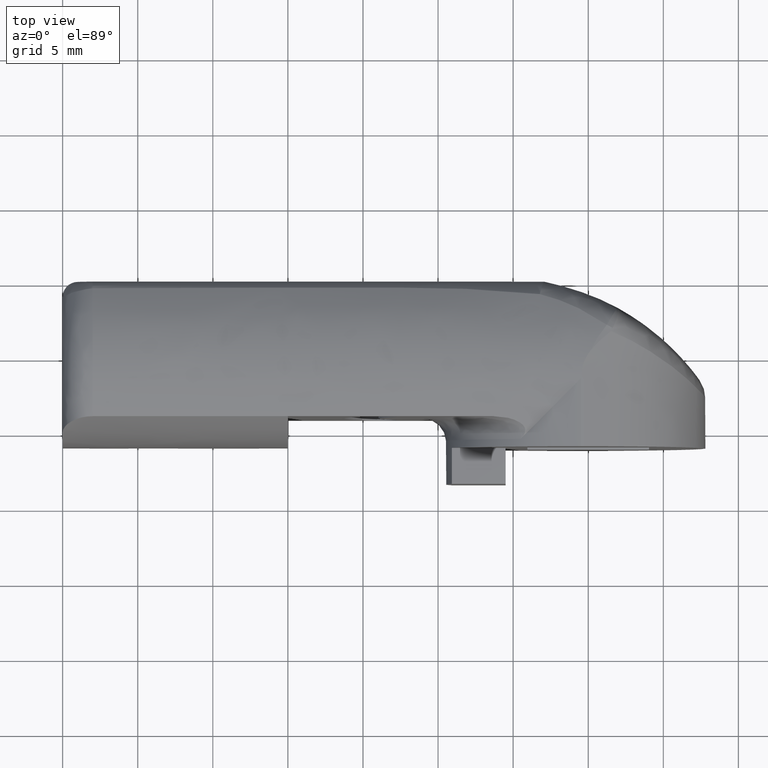
[diagram: clean part render]
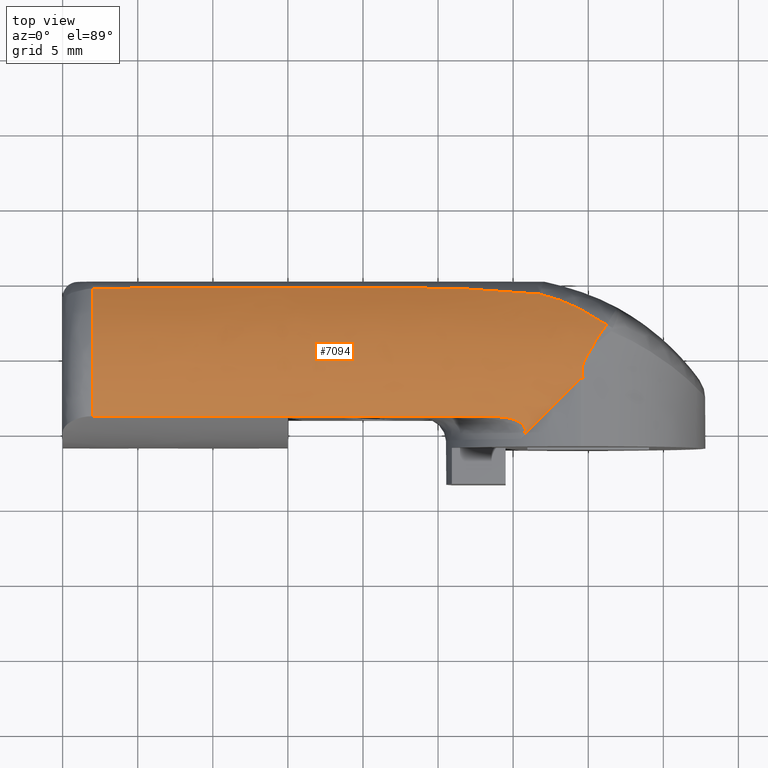
[diagram: same view with one face highlighted and labeled with its STEP entity id]
A machine part, top view. The second image highlights one B-rep face of the part: STEP entity #7094.
In plain terms, the highlighted face is a freeform B-spline surface patch.
Its self-contained STEP definition (entity closure, byte-faithful):
#1316=CARTESIAN_POINT('',(-0.475000044972790,-6.475000329957500,9.488118205372809));
#1317=VERTEX_POINT('',#1316);
#1318=CARTESIAN_POINT('',(-0.265116297193638,-6.667739119100730,9.476504282840940));
#1319=VERTEX_POINT('',#1318);
#1320=CARTESIAN_POINT('',(-0.475000044972790,-6.475000329957500,9.488118205372809));
#1321=CARTESIAN_POINT('',(-0.464934586889245,-6.464934900879319,9.488621547543346));
#1322=CARTESIAN_POINT('',(-0.453458642486710,-6.455924955567777,9.489054711325441));
#1323=CARTESIAN_POINT('',(-0.433193777884237,-6.449559988936873,9.489357678868107));
#1324=CARTESIAN_POINT('',(-0.425979321537591,-6.448803791278023,9.489393280812646));
#1325=CARTESIAN_POINT('',(-0.411743672762155,-6.450647694503454,9.489305893345804));
#1326=CARTESIAN_POINT('',(-0.404972765416532,-6.453150568227013,9.489187266244050));
#1327=CARTESIAN_POINT('',(-0.386292267408443,-6.463347486843125,9.488696657753520));
#1328=CARTESIAN_POINT('',(-0.375887198508413,-6.473389396150057,9.488204433332713));
#1329=CARTESIAN_POINT('',(-0.357432517385265,-6.494532263699172,9.487125947372745));
#1330=CARTESIAN_POINT('',(-0.349269449066000,-6.505927747599334,9.486526496331109));
#1331=CARTESIAN_POINT('',(-0.326241729541057,-6.541243364452071,9.484599119685560));
#1332=CARTESIAN_POINT('',(-0.312945563729961,-6.566131752084761,9.483150230919295));
#1333=CARTESIAN_POINT('',(-0.287964423056222,-6.616415299930214,9.480014539523410));
#1334=CARTESIAN_POINT('',(-0.276325310636474,-6.641973757767313,9.478319776384124));
#1335=CARTESIAN_POINT('',(-0.265116297193638,-6.667739119100730,9.476504282840940));
#1336=B_SPLINE_CURVE_WITH_KNOTS('',3,(#1320,#1321,#1322,#1323,#1324,#1325,#1326,#1327,#1328,#1329,#1330,#1331,#1332,#1333,#1334,#1335),.UNSPECIFIED.,.F.,.U.,(4,2,2,2,2,2,2,4),(0.0,0.125000000000001,0.187500000000001,0.250000000000002,0.375000000000004,0.500000000000005,0.750000000000003,1.0),.UNSPECIFIED.);
#1337=EDGE_CURVE('',#1317,#1319,#1336,.T.);
#1492=CARTESIAN_POINT('',(1.237085529878034,-2.913834139328760,8.984491458066330));
#1493=VERTEX_POINT('',#1492);
#1637=CARTESIAN_POINT('',(0.136187645533401,-4.643965705192390,9.402721882077399));
#1638=VERTEX_POINT('',#1637);
#1663=CARTESIAN_POINT('',(0.136187645533401,-4.643965705192390,9.402721882077399));
#1664=CARTESIAN_POINT('',(0.168842153339941,-4.563438714313707,9.391099142480961));
#1665=CARTESIAN_POINT('',(0.204728191507659,-4.484557349709411,9.378661119299608));
#1666=CARTESIAN_POINT('',(0.281394725883507,-4.329337642604431,9.352239095769310));
#1667=CARTESIAN_POINT('',(0.322204070524658,-4.252969567755326,9.338245976412210));
#1668=CARTESIAN_POINT('',(0.449698795560292,-4.027864097700409,9.294224914776827));
#1669=CARTESIAN_POINT('',(0.541529368328973,-3.882669162100140,9.262099179901945));
#1670=CARTESIAN_POINT('',(0.733365813542397,-3.598560965325462,9.192491842241918));
#1671=CARTESIAN_POINT('',(0.833442294891672,-3.459692629376586,9.154999958898234));
#1672=CARTESIAN_POINT('',(0.987081576894620,-3.255440245696583,9.094992956454501));
#1673=CARTESIAN_POINT('',(1.038919270676344,-3.188006434907034,9.074353635722007));
#1674=CARTESIAN_POINT('',(1.117441534847931,-3.087704890740207,9.042442033636929));
#1675=CARTESIAN_POINT('',(1.143743756802523,-3.054412955489481,9.031646036403380));
#1676=CARTESIAN_POINT('',(1.176767211212000,-3.012964772554685,9.017952663904504));
#1677=CARTESIAN_POINT('',(1.183312205273130,-3.004638785327347,9.015189530492732));
#1678=CARTESIAN_POINT('',(1.195651760688756,-2.987494582943715,9.009472454938541));
#1679=CARTESIAN_POINT('',(1.213287232955801,-2.961233378636330,9.000674416338047));
#1680=CARTESIAN_POINT('',(1.228301114862452,-2.933265038437741,8.991168683993726));
#1681=CARTESIAN_POINT('',(1.237085529878034,-2.913834139328760,8.984491458066330));
#1682=B_SPLINE_CURVE_WITH_KNOTS('',3,(#1663,#1664,#1665,#1666,#1667,#1668,#1669,#1670,#1671,#1672,#1673,#1674,#1675,#1676,#1677,#1678,#1679,#1680,#1681),.UNSPECIFIED.,.F.,.U.,(4,2,2,2,2,2,2,2,1,4),(0.0,0.125000000000000,0.250000000000001,0.500000000000000,0.750000000000000,0.875000000000000,0.937500000000000,0.953125000000000,0.968750000000000,0.999968413053493),.UNSPECIFIED.);
#1683=EDGE_CURVE('',#1638,#1493,#1682,.T.);
#4174=CARTESIAN_POINT('',(-6.304759746908700,-9.000000427477060,9.013878616796170));
#4175=VERTEX_POINT('',#4174);
#4176=CARTESIAN_POINT('',(-4.500000142492310,-10.500000427477019,8.366600888053180));
#4177=VERTEX_POINT('',#4176);
#4178=CARTESIAN_POINT('',(-6.304759746908700,-9.000000427477060,9.013878616796170));
#4179=CARTESIAN_POINT('',(-6.169380712607566,-9.000000427477060,9.013878616796172));
#4180=CARTESIAN_POINT('',(-6.035121637536772,-9.005980681818919,9.011894775541133));
#4181=CARTESIAN_POINT('',(-5.768818420343930,-9.029743925802521,9.003933532767846));
#4182=CARTESIAN_POINT('',(-5.636770603917414,-9.047507829411345,8.997964176386322));
#4183=CARTESIAN_POINT('',(-5.375097614095001,-9.095869518092147,8.981439486205295));
#4184=CARTESIAN_POINT('',(-5.245458790306448,-9.126397014396138,8.970915819362807));
#4185=CARTESIAN_POINT('',(-5.053314941457016,-9.184341674093798,8.950441225689223));
#4186=CARTESIAN_POINT('',(-4.989656809683360,-9.205703137167976,8.942825261325433));
#4187=CARTESIAN_POINT('',(-4.863312570353103,-9.253503346600388,8.925546048234450));
#4188=CARTESIAN_POINT('',(-4.801345440930641,-9.279673791983729,8.915980003621135));
#4189=CARTESIAN_POINT('',(-4.680961149114052,-9.337433258958985,8.894520722428629));
#4190=CARTESIAN_POINT('',(-4.622451629452465,-9.369025438381502,8.882629629365944));
#4191=CARTESIAN_POINT('',(-4.538174318037735,-9.422000600241422,8.862295423677100));
#4192=CARTESIAN_POINT('',(-4.510668693740893,-9.440599084064225,8.855096762130239));
#4193=CARTESIAN_POINT('',(-4.457111660685102,-9.480119200605882,8.839639760536207));
#4194=CARTESIAN_POINT('',(-4.431130358379456,-9.501007337946417,8.831393728496060));
#4195=CARTESIAN_POINT('',(-4.381952928225338,-9.544843481763834,8.813889736254703));
#4196=CARTESIAN_POINT('',(-4.358645857959695,-9.567865530896720,8.804603350564406));
#4197=CARTESIAN_POINT('',(-4.315213949880898,-9.616641332000334,8.784680421665801));
#4198=CARTESIAN_POINT('',(-4.295011976927952,-9.642562534705910,8.773972429236958));
#4199=CARTESIAN_POINT('',(-4.259747542282848,-9.696136434421815,8.751538693105829));
#4200=CARTESIAN_POINT('',(-4.244533241335536,-9.723925015454357,8.739758873304028));
#4201=CARTESIAN_POINT('',(-4.225882671811153,-9.767326209164981,8.721095799920523));
#4202=CARTESIAN_POINT('',(-4.220362433935872,-9.782080245784302,8.714708817761657));
#4203=CARTESIAN_POINT('',(-4.210826150177898,-9.812206268991892,8.701572509825709));
#4204=CARTESIAN_POINT('',(-4.206805573202396,-9.827647115667499,8.694792181907769));
#4205=CARTESIAN_POINT('',(-4.197375956124986,-9.873782744072388,8.674384654129518));
#4206=CARTESIAN_POINT('',(-4.194465545647697,-9.904613294411483,8.660551820485273));
#4207=CARTESIAN_POINT('',(-4.194935391219948,-9.966397208031657,8.632430482635776));
#4208=CARTESIAN_POINT('',(-4.198391753571454,-9.997648964183945,8.618001236891507));
#4209=CARTESIAN_POINT('',(-4.216965549996175,-10.089050178997841,8.575208823688815));
#4210=CARTESIAN_POINT('',(-4.239745142534652,-10.146711944320840,8.547433531728853));
#4211=CARTESIAN_POINT('',(-4.298807972236827,-10.257703860051750,8.492690847538153));
#4212=CARTESIAN_POINT('',(-4.334283205908049,-10.309483979653550,8.466488963445128));
#4213=CARTESIAN_POINT('',(-4.412258993786739,-10.408050961523561,8.415591144763408));
#4214=CARTESIAN_POINT('',(-4.454879954788003,-10.454880957190021,8.390868338764824));
#4215=CARTESIAN_POINT('',(-4.500000142492310,-10.500000427477019,8.366600888053180));
#4216=B_SPLINE_CURVE_WITH_KNOTS('',3,(#4178,#4179,#4180,#4181,#4182,#4183,#4184,#4185,#4186,#4187,#4188,#4189,#4190,#4191,#4192,#4193,#4194,#4195,#4196,#4197,#4198,#4199,#4200,#4201,#4202,#4203,#4204,#4205,#4206,#4207,#4208,#4209,#4210,#4211,#4212,#4213,#4214,#4215),.UNSPECIFIED.,.F.,.U.,(4,2,2,2,2,2,2,2,2,2,2,2,2,2,2,2,2,2,4),(0.0,0.124999999999998,0.249999999999996,0.374999999999995,0.437499999999993,0.499999999999992,0.562499999999991,0.593749999999990,0.624999999999990,0.656249999999989,0.687499999999989,0.718749999999988,0.734374999999988,0.749999999999988,0.781249999999990,0.812499999999991,0.874999999999994,0.937499999999997,1.0),.UNSPECIFIED.);
#4217=EDGE_CURVE('',#4175,#4177,#4216,.T.);
#5415=CARTESIAN_POINT('',(-3.217989052268775,-0.852127659430386,7.984323140026199));
#5416=VERTEX_POINT('',#5415);
#5417=CARTESIAN_POINT('',(1.237085529878034,-2.913834139328760,8.984491458066330));
#5418=CARTESIAN_POINT('',(1.148139067269826,-2.851164307719322,8.962996942272422));
#5419=CARTESIAN_POINT('',(0.909847598893879,-2.685298145864320,8.905135186977327));
#5420=CARTESIAN_POINT('',(0.516182575586910,-2.432435136298134,8.806657930502880));
#5421=CARTESIAN_POINT('',(0.057172658949592,-2.160109138063156,8.691317440544891));
#5422=CARTESIAN_POINT('',(-0.404128257908732,-1.910420340626917,8.576342575961991));
#5423=CARTESIAN_POINT('',(-0.867477054585587,-1.682435707262857,8.463626252071963));
#5424=CARTESIAN_POINT('',(-1.332948233477574,-1.475723179842680,8.354707894331243));
#5425=CARTESIAN_POINT('',(-1.800484858012370,-1.289553349818882,8.250952771857104));
#5426=CARTESIAN_POINT('',(-2.270238567447927,-1.123802749606332,8.153850641099011));
#5427=CARTESIAN_POINT('',(-2.741664158349950,-0.976264917525109,8.063698879888056));
#5428=CARTESIAN_POINT('',(-3.059712892359269,-0.893376749628633,8.010698598155104));
#5429=CARTESIAN_POINT('',(-3.217989052268775,-0.852127659430386,7.984323140026199));
#5430=B_SPLINE_CURVE_WITH_KNOTS('',3,(#5417,#5418,#5419,#5420,#5421,#5422,#5423,#5424,#5425,#5426,#5427,#5428,#5429),.UNSPECIFIED.,.F.,.U.,(4,1,1,1,1,1,1,1,1,1,4),(0.044208569310255,0.107326943010448,0.212697980902703,0.316225412834516,0.418027649742866,0.518229228820807,0.616960753880645,0.714358751375391,0.810565433239471,0.905728359918267,1.0),.UNSPECIFIED.);
#5431=EDGE_CURVE('',#1493,#5416,#5430,.T.);
#5785=CARTESIAN_POINT('',(-33.000000276476449,-0.458333330482542,7.716212538458750));
#5786=VERTEX_POINT('',#5785);
#5800=CARTESIAN_POINT('',(-3.217989052268775,-0.852127659430386,7.984323140026199));
#5801=CARTESIAN_POINT('',(-3.536323719976646,-0.825006493145238,7.966731417640599));
#5802=CARTESIAN_POINT('',(-4.157076947744089,-0.772120165578400,7.932427524409442));
#5803=CARTESIAN_POINT('',(-5.081191086820840,-0.685845167314694,7.874830140031021));
#5804=CARTESIAN_POINT('',(-6.003324001589903,-0.607615629896395,7.821429488650330));
#5805=CARTESIAN_POINT('',(-7.121983908818547,-0.534169423654028,7.770253425748635));
#5806=CARTESIAN_POINT('',(-8.679578722934027,-0.478692484415819,7.730876549312789));
#5807=CARTESIAN_POINT('',(-10.503654748617629,-0.435684151512818,7.699930016394538));
#5808=CARTESIAN_POINT('',(-12.664542551893730,-0.413265419907390,7.683646973933626));
#5809=CARTESIAN_POINT('',(-15.146451888199440,-0.411208752672190,7.682148703619233));
#5810=CARTESIAN_POINT('',(-19.527180330368900,-0.411950905961609,7.682689468710445));
#5811=CARTESIAN_POINT('',(-23.840820148061070,-0.413412465599984,7.683753429269416));
#5812=CARTESIAN_POINT('',(-27.563586661170039,-0.409859065100716,7.681166532916834));
#5813=CARTESIAN_POINT('',(-29.487560470792900,-0.418756513766869,7.687642165022912));
#5814=CARTESIAN_POINT('',(-31.056879657065490,-0.438599952920433,7.702014654992141));
#5815=CARTESIAN_POINT('',(-32.297800629634558,-0.451305320699563,7.711163103681679));
#5816=CARTESIAN_POINT('',(-32.855721588135538,-0.456889308062859,7.715175047440676));
#5817=CARTESIAN_POINT('',(-33.000000276476449,-0.458333330482542,7.716212538458750));
#5818=B_SPLINE_CURVE_WITH_KNOTS('',3,(#5800,#5801,#5802,#5803,#5804,#5805,#5806,#5807,#5808,#5809,#5810,#5811,#5812,#5813,#5814,#5815,#5816,#5817),.UNSPECIFIED.,.F.,.U.,(4,1,1,1,1,1,1,1,1,1,1,1,1,1,1,4),(0.0,0.032208116472371,0.062805890431113,0.093604980169674,0.125515400570721,0.175753764953301,0.250517955878742,0.309201872589964,0.393279000964335,0.500345410091217,0.750167031558228,0.827490193566721,0.875078759771833,0.943835385057791,0.985475797509416,1.0),.UNSPECIFIED.);
#5819=EDGE_CURVE('',#5416,#5786,#5818,.T.);
#6568=CARTESIAN_POINT('',(-33.000000276476449,-9.000000427476470,9.013878616795900));
#6569=VERTEX_POINT('',#6568);
#6570=CARTESIAN_POINT('',(-33.000000276476449,-0.458333330482539,7.716212538458755));
#6571=CARTESIAN_POINT('',(-33.000000276476449,-4.397900553489780,10.545550038685230));
#6572=CARTESIAN_POINT('',(-33.000000276476449,-9.000000427476470,9.013878616795900));
#6580=(BOUNDED_CURVE()B_SPLINE_CURVE(2,(#6570,#6571,#6572),.UNSPECIFIED.,.F.,.U.)CURVE()GEOMETRIC_REPRESENTATION_ITEM()QUASI_UNIFORM_CURVE()RATIONAL_B_SPLINE_CURVE((1.0,0.890634547740530,1.0))REPRESENTATION_ITEM(''));
#6581=EDGE_CURVE('',#5786,#6569,#6580,.T.);
#6843=CARTESIAN_POINT('',(-0.475000044972790,-6.475000329957500,9.488118205372809));
#6844=CARTESIAN_POINT('',(-2.613912259124783,-8.613912544109491,9.381038656409785));
#6845=CARTESIAN_POINT('',(-4.500000142492309,-10.500000427477019,8.366600888053183));
#6853=(BOUNDED_CURVE()B_SPLINE_CURVE(2,(#6843,#6844,#6845),.UNSPECIFIED.,.F.,.U.)CURVE()GEOMETRIC_REPRESENTATION_ITEM()QUASI_UNIFORM_CURVE()RATIONAL_B_SPLINE_CURVE((1.0,0.975519713436387,1.0))REPRESENTATION_ITEM(''));
#6854=EDGE_CURVE('',#1317,#4177,#6853,.T.);
#6909=CARTESIAN_POINT('',(-20.000000949948699,-9.000000427476470,9.013878616795900));
#6910=VERTEX_POINT('',#6909);
#6946=CARTESIAN_POINT('',(-20.000000949948699,-9.000000427476470,9.013878616795900));
#6947=CARTESIAN_POINT('',(-33.000000276476449,-9.000000427476470,9.013878616795900));
#6948=QUASI_UNIFORM_CURVE('',1,(#6946,#6947),.UNSPECIFIED.,.F.,.U.);
#6949=EDGE_CURVE('',#6910,#6569,#6948,.T.);
#6983=CARTESIAN_POINT('',(-0.417972900758230,-5.997537781669670,9.500000132071930));
#6984=VERTEX_POINT('',#6983);
#6985=CARTESIAN_POINT('',(-0.417972900758230,-5.997537781669670,9.500000132071930));
#6986=CARTESIAN_POINT('',(-0.417893241117099,-5.954793744610399,9.499988636748025));
#6987=CARTESIAN_POINT('',(-0.415815110416905,-5.912005646816691,9.499686817925721));
#6988=CARTESIAN_POINT('',(-0.403332129664121,-5.778946622263393,9.497862623991795));
#6989=CARTESIAN_POINT('',(-0.386101700125725,-5.689779820115842,9.495340819145241));
#6990=CARTESIAN_POINT('',(-0.349645168062719,-5.558053912252765,9.489816823086390));
#6991=CARTESIAN_POINT('',(-0.335690647601668,-5.514374289972752,9.487678482020327));
#6992=CARTESIAN_POINT('',(-0.304857799274033,-5.428090388605856,9.482868482460717));
#6993=CARTESIAN_POINT('',(-0.288085829335381,-5.385744304319672,9.480213335514891));
#6994=CARTESIAN_POINT('',(-0.234452594718260,-5.260662082734752,9.471556075400388));
#6995=CARTESIAN_POINT('',(-0.194311945518602,-5.179860069868727,9.464865635401123));
#6996=CARTESIAN_POINT('',(-0.065006764960618,-4.942756988045220,9.442322636184320));
#6997=CARTESIAN_POINT('',(0.032782671166539,-4.791610490743308,9.424014805258990));
#6998=CARTESIAN_POINT('',(0.136187645533401,-4.643965705192390,9.402721882077399));
#6999=B_SPLINE_CURVE_WITH_KNOTS('',3,(#6985,#6986,#6987,#6988,#6989,#6990,#6991,#6992,#6993,#6994,#6995,#6996,#6997,#6998),.UNSPECIFIED.,.F.,.U.,(4,2,2,2,2,2,4),(0.316872692625560,0.375000000000000,0.500000000000000,0.562500000000000,0.624999999999999,0.749999999999999,1.0),.UNSPECIFIED.);
#7000=EDGE_CURVE('',#6984,#1638,#6999,.T.);
#7002=CARTESIAN_POINT('',(-0.417972900758230,-6.002462788298301,9.500000132071930));
#7003=VERTEX_POINT('',#7002);
#7004=CARTESIAN_POINT('',(-0.417972900758230,-5.997537781669670,9.500000132071930));
#7005=CARTESIAN_POINT('',(-0.417972900758230,-6.002462788298301,9.500000132071930));
#7006=QUASI_UNIFORM_CURVE('',1,(#7004,#7005),.UNSPECIFIED.,.F.,.U.);
#7007=EDGE_CURVE('',#6984,#7003,#7006,.T.);
#7009=CARTESIAN_POINT('',(-0.265116297193637,-6.667739119100731,9.476504282840946));
#7010=CARTESIAN_POINT('',(-0.283066147217142,-6.626479076538326,9.479411571424780));
#7011=CARTESIAN_POINT('',(-0.299965204606950,-6.584547935835209,9.482096101822513));
#7012=CARTESIAN_POINT('',(-0.331174259068296,-6.499039987078359,9.486980648027419));
#7013=CARTESIAN_POINT('',(-0.345530120210970,-6.455262654834961,9.489187506971714));
#7014=CARTESIAN_POINT('',(-0.383136604028289,-6.323427497647823,9.494900873085493));
#7015=CARTESIAN_POINT('',(-0.401131077732926,-6.234382055896361,9.497539513557467));
#7016=CARTESIAN_POINT('',(-0.415185007396437,-6.098707288431186,9.499595321063312));
#7017=CARTESIAN_POINT('',(-0.417717619008532,-6.053131931054891,9.499962994129357));
#7018=CARTESIAN_POINT('',(-0.417964605829119,-6.005609830929982,9.499998925354264));
#7019=CARTESIAN_POINT('',(-0.417970061856266,-6.004036354937010,9.499999720017776));
#7020=CARTESIAN_POINT('',(-0.417972900758230,-6.002462788298301,9.500000132071930));
#7021=B_SPLINE_CURVE_WITH_KNOTS('',3,(#7009,#7010,#7011,#7012,#7013,#7014,#7015,#7016,#7017,#7018,#7019,#7020),.UNSPECIFIED.,.F.,.U.,(4,2,2,2,2,4),(0.0,0.062500000000000,0.125000000000000,0.250000000000000,0.312500000000000,0.314640095684181),.UNSPECIFIED.);
#7022=EDGE_CURVE('',#1319,#7003,#7021,.T.);
#7062=CARTESIAN_POINT('',(2.093012675036897,-0.139265739186919,7.476750574747147));
#7063=CARTESIAN_POINT('',(-33.877325600264292,-0.139265739186919,7.476750574747147));
#7064=CARTESIAN_POINT('',(2.093012675036897,-5.277894041424315,11.504721831492645));
#7065=CARTESIAN_POINT('',(-33.877325600264300,-5.277894041424315,11.504721831492645));
#7066=CARTESIAN_POINT('',(2.093012675036897,-10.879848853363510,8.150894829586555));
#7067=CARTESIAN_POINT('',(-33.877325600264292,-10.879848853363510,8.150894829586555));
#7075=(BOUNDED_SURFACE()B_SPLINE_SURFACE(1,2,((#7062,#7064,#7066),(#7063,#7065,#7067)),.UNSPECIFIED.,.F.,.F.,.U.)B_SPLINE_SURFACE_WITH_KNOTS((2,2),(3,3),(0.0,35.970338275301188),(0.0,11.799314192024880),.UNSPECIFIED.)GEOMETRIC_REPRESENTATION_ITEM()RATIONAL_B_SPLINE_SURFACE(((1.0,0.824126188622015,1.0),(1.0,0.824126188622015,1.0)))REPRESENTATION_ITEM('')SURFACE());
#7076=ORIENTED_EDGE('',*,*,#7000,.T.);
#7077=ORIENTED_EDGE('',*,*,#1683,.T.);
#7078=ORIENTED_EDGE('',*,*,#5431,.T.);
#7079=ORIENTED_EDGE('',*,*,#5819,.T.);
#7080=ORIENTED_EDGE('',*,*,#6581,.T.);
#7081=ORIENTED_EDGE('',*,*,#6949,.F.);
#7082=CARTESIAN_POINT('',(-6.304759746908700,-9.000000427477060,9.013878616796170));
#7083=CARTESIAN_POINT('',(-20.000000949948699,-9.000000427476470,9.013878616795900));
#7084=QUASI_UNIFORM_CURVE('',1,(#7082,#7083),.UNSPECIFIED.,.F.,.U.);
#7085=EDGE_CURVE('',#4175,#6910,#7084,.T.);
#7086=ORIENTED_EDGE('',*,*,#7085,.F.);
#7087=ORIENTED_EDGE('',*,*,#4217,.T.);
#7088=ORIENTED_EDGE('',*,*,#6854,.F.);
#7089=ORIENTED_EDGE('',*,*,#1337,.T.);
#7090=ORIENTED_EDGE('',*,*,#7022,.T.);
#7091=ORIENTED_EDGE('',*,*,#7007,.F.);
#7092=EDGE_LOOP('',(#7076,#7077,#7078,#7079,#7080,#7081,#7086,#7087,#7088,#7089,#7090,#7091));
#7093=FACE_OUTER_BOUND('',#7092,.T.);
#7094=ADVANCED_FACE('',(#7093),#7075,.T.);